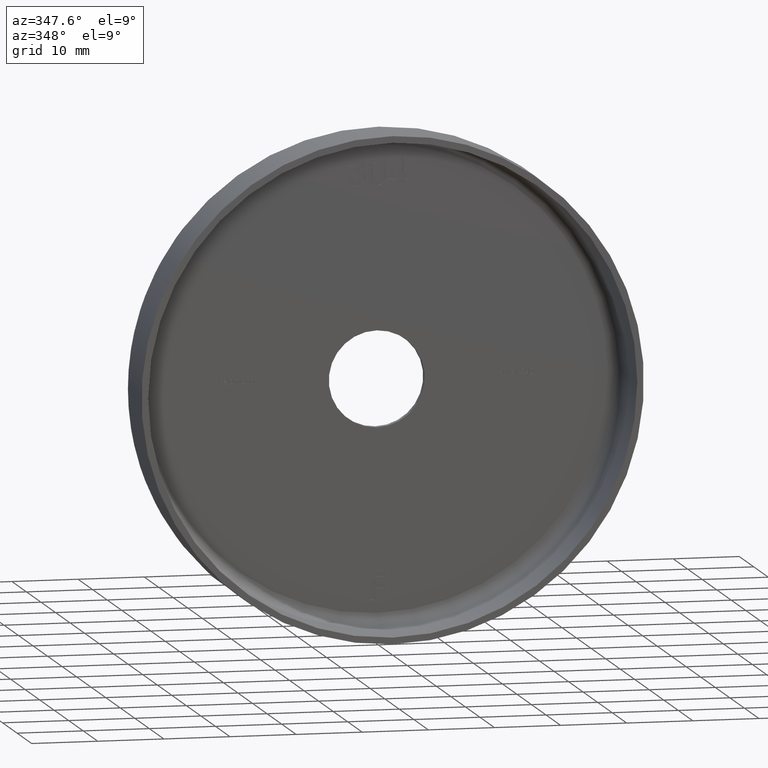
[diagram: clean part render]
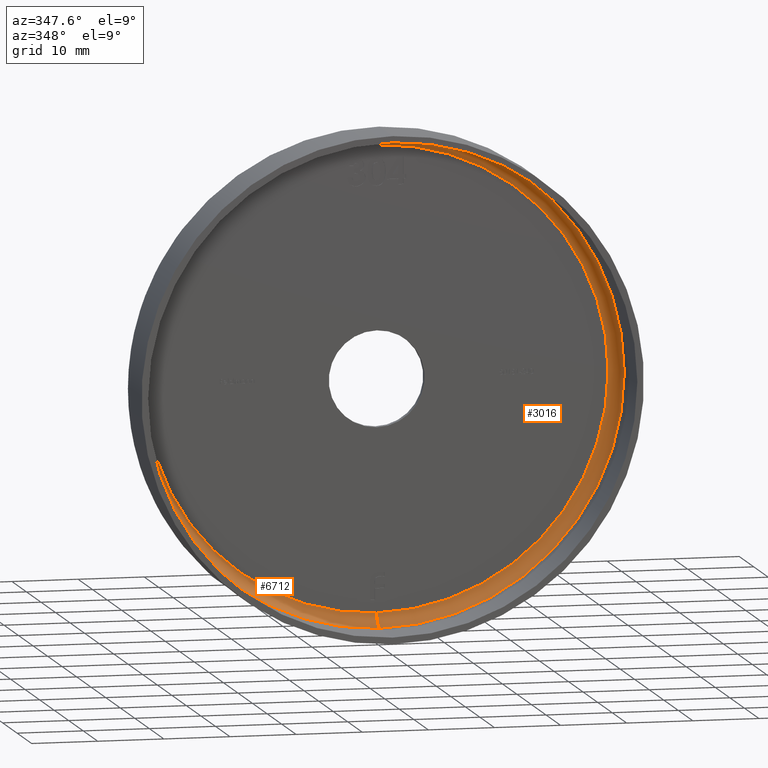
[diagram: same view with one multi-face feature highlighted, each face labeled with its STEP entity id]
A machine part, auxiliary view. The highlighted faces form ONE feature: a constant-radius fillet chain: 2 tangent blend faces with common blend radius 2 mm. The faces share edges in the B-rep.
Their STEP definitions:
[1] entity #6712 (Torus):
#182 = DIRECTION ( 'NONE',  ( 0.000000000000000000, 0.000000000000000000, 1.000000000000000000 ) ) ;
#188 = DIRECTION ( 'NONE',  ( -0.000000000000000000, -1.000000000000000000, -0.000000000000000000 ) ) ;
#680 = CARTESIAN_POINT ( 'NONE',  ( 4.531193156845207581E-15, 9.000000000000001776, 37.00000000000000711 ) ) ;
#1110 = CIRCLE ( 'NONE', #10536, 2.000000000000001776 ) ;
#1143 = CARTESIAN_POINT ( 'NONE',  ( 4.286263797015736496E-15, 9.000000000000001776, 35.00000000000000000 ) ) ;
#1369 = DIRECTION ( 'NONE',  ( 0.000000000000000000, 0.000000000000000000, -1.000000000000000000 ) ) ;
#1545 = CARTESIAN_POINT ( 'NONE',  ( 0.000000000000000000, 9.000000000000001776, -37.00000000000000711 ) ) ;
#2362 = ORIENTED_EDGE ( 'NONE', *, *, #4398, .T. ) ;
#2639 = DIRECTION ( 'NONE',  ( -0.000000000000000000, -1.000000000000000000, -0.000000000000000000 ) ) ;
#3726 = CARTESIAN_POINT ( 'NONE',  ( 0.000000000000000000, 9.000000000000001776, -35.00000000000000000 ) ) ;
#3733 = CARTESIAN_POINT ( 'NONE',  ( 0.000000000000000000, 11.00000000000000178, 0.000000000000000000 ) ) ;
#3779 = VERTEX_POINT ( 'NONE', #7228 ) ;
#3780 = EDGE_CURVE ( 'NONE', #3779, #13466, #1110, .T. ) ;
#4398 = EDGE_CURVE ( 'NONE', #4908, #13466, #14119, .T. ) ;
#4908 = VERTEX_POINT ( 'NONE', #680 ) ;
#4950 = DIRECTION ( 'NONE',  ( -1.000000000000000000, 0.000000000000000000, 0.000000000000000000 ) ) ;
#5173 = EDGE_LOOP ( 'NONE', ( #5254, #11848, #2362, #7287 ) ) ;
#5254 = ORIENTED_EDGE ( 'NONE', *, *, #7177, .F. ) ;
#5627 = AXIS2_PLACEMENT_3D ( 'NONE', #13223, #2639, #10855 ) ;
#5703 = EDGE_CURVE ( 'NONE', #10794, #4908, #10097, .T. ) ;
#5910 = DIRECTION ( 'NONE',  ( -1.224646799147353454E-16, 0.000000000000000000, -1.000000000000000000 ) ) ;
#6606 = FACE_OUTER_BOUND ( 'NONE', #5173, .T. ) ;
#6712 = ADVANCED_FACE ( 'NONE', ( #6606 ), #9344, .F. ) ;
#6901 = CARTESIAN_POINT ( 'NONE',  ( 4.408728476930472433E-15, 11.00000000000000178, 35.00000000000000000 ) ) ;
#7116 = DIRECTION ( 'NONE',  ( -0.000000000000000000, -1.000000000000000000, -0.000000000000000000 ) ) ;
#7177 = EDGE_CURVE ( 'NONE', #10794, #3779, #7304, .T. ) ;
#7228 = CARTESIAN_POINT ( 'NONE',  ( 0.000000000000000000, 11.00000000000000178, -35.00000000000000000 ) ) ;
#7287 = ORIENTED_EDGE ( 'NONE', *, *, #3780, .F. ) ;
#7304 = CIRCLE ( 'NONE', #14273, 35.00000000000000000 ) ;
#9284 = DIRECTION ( 'NONE',  ( 1.000000000000000000, 0.000000000000000000, -1.224646799147353207E-16 ) ) ;
#9344 = TOROIDAL_SURFACE ( 'NONE', #5627, 35.00000000000000000, 2.000000000000000000 ) ;
#9582 = CARTESIAN_POINT ( 'NONE',  ( 0.000000000000000000, 9.000000000000001776, 0.000000000000000000 ) ) ;
#9869 = AXIS2_PLACEMENT_3D ( 'NONE', #1143, #9284, #5910 ) ;
#10097 = CIRCLE ( 'NONE', #9869, 2.000000000000001776 ) ;
#10536 = AXIS2_PLACEMENT_3D ( 'NONE', #3726, #4950, #182 ) ;
#10794 = VERTEX_POINT ( 'NONE', #6901 ) ;
#10855 = DIRECTION ( 'NONE',  ( 0.000000000000000000, 0.000000000000000000, -1.000000000000000000 ) ) ;
#11848 = ORIENTED_EDGE ( 'NONE', *, *, #5703, .T. ) ;
#13223 = CARTESIAN_POINT ( 'NONE',  ( 0.000000000000000000, 9.000000000000001776, 0.000000000000000000 ) ) ;
#13466 = VERTEX_POINT ( 'NONE', #1545 ) ;
#14119 = CIRCLE ( 'NONE', #14888, 37.00000000000000711 ) ;
#14273 = AXIS2_PLACEMENT_3D ( 'NONE', #3733, #188, #1369 ) ;
#14338 = DIRECTION ( 'NONE',  ( 0.000000000000000000, 0.000000000000000000, -1.000000000000000000 ) ) ;
#14888 = AXIS2_PLACEMENT_3D ( 'NONE', #9582, #7116, #14338 ) ;
[2] entity #3016 (Torus):
#182 = DIRECTION ( 'NONE',  ( 0.000000000000000000, 0.000000000000000000, 1.000000000000000000 ) ) ;
#510 = ORIENTED_EDGE ( 'NONE', *, *, #7046, .T. ) ;
#680 = CARTESIAN_POINT ( 'NONE',  ( 4.531193156845207581E-15, 9.000000000000001776, 37.00000000000000711 ) ) ;
#936 = TOROIDAL_SURFACE ( 'NONE', #2878, 35.00000000000000000, 2.000000000000000000 ) ;
#1110 = CIRCLE ( 'NONE', #10536, 2.000000000000001776 ) ;
#1143 = CARTESIAN_POINT ( 'NONE',  ( 4.286263797015736496E-15, 9.000000000000001776, 35.00000000000000000 ) ) ;
#1545 = CARTESIAN_POINT ( 'NONE',  ( 0.000000000000000000, 9.000000000000001776, -37.00000000000000711 ) ) ;
#2037 = DIRECTION ( 'NONE',  ( 0.000000000000000000, 0.000000000000000000, -1.000000000000000000 ) ) ;
#2341 = ORIENTED_EDGE ( 'NONE', *, *, #5703, .F. ) ;
#2878 = AXIS2_PLACEMENT_3D ( 'NONE', #14476, #8811, #14528 ) ;
#3016 = ADVANCED_FACE ( 'NONE', ( #4058 ), #936, .F. ) ;
#3726 = CARTESIAN_POINT ( 'NONE',  ( 0.000000000000000000, 9.000000000000001776, -35.00000000000000000 ) ) ;
#3779 = VERTEX_POINT ( 'NONE', #7228 ) ;
#3780 = EDGE_CURVE ( 'NONE', #3779, #13466, #1110, .T. ) ;
#4058 = FACE_OUTER_BOUND ( 'NONE', #10306, .T. ) ;
#4397 = CIRCLE ( 'NONE', #12538, 35.00000000000000000 ) ;
#4515 = DIRECTION ( 'NONE',  ( 0.000000000000000000, 0.000000000000000000, -1.000000000000000000 ) ) ;
#4908 = VERTEX_POINT ( 'NONE', #680 ) ;
#4950 = DIRECTION ( 'NONE',  ( -1.000000000000000000, 0.000000000000000000, 0.000000000000000000 ) ) ;
#5676 = EDGE_CURVE ( 'NONE', #3779, #10794, #4397, .T. ) ;
#5703 = EDGE_CURVE ( 'NONE', #10794, #4908, #10097, .T. ) ;
#5749 = CARTESIAN_POINT ( 'NONE',  ( 0.000000000000000000, 9.000000000000001776, 0.000000000000000000 ) ) ;
#5910 = DIRECTION ( 'NONE',  ( -1.224646799147353454E-16, 0.000000000000000000, -1.000000000000000000 ) ) ;
#6901 = CARTESIAN_POINT ( 'NONE',  ( 4.408728476930472433E-15, 11.00000000000000178, 35.00000000000000000 ) ) ;
#7046 = EDGE_CURVE ( 'NONE', #13466, #4908, #15057, .T. ) ;
#7228 = CARTESIAN_POINT ( 'NONE',  ( 0.000000000000000000, 11.00000000000000178, -35.00000000000000000 ) ) ;
#8054 = CARTESIAN_POINT ( 'NONE',  ( 0.000000000000000000, 11.00000000000000178, 0.000000000000000000 ) ) ;
#8811 = DIRECTION ( 'NONE',  ( -0.000000000000000000, -1.000000000000000000, -0.000000000000000000 ) ) ;
#9284 = DIRECTION ( 'NONE',  ( 1.000000000000000000, 0.000000000000000000, -1.224646799147353207E-16 ) ) ;
#9869 = AXIS2_PLACEMENT_3D ( 'NONE', #1143, #9284, #5910 ) ;
#10097 = CIRCLE ( 'NONE', #9869, 2.000000000000001776 ) ;
#10306 = EDGE_LOOP ( 'NONE', ( #2341, #12351, #12817, #510 ) ) ;
#10536 = AXIS2_PLACEMENT_3D ( 'NONE', #3726, #4950, #182 ) ;
#10794 = VERTEX_POINT ( 'NONE', #6901 ) ;
#11722 = DIRECTION ( 'NONE',  ( -0.000000000000000000, -1.000000000000000000, -0.000000000000000000 ) ) ;
#12351 = ORIENTED_EDGE ( 'NONE', *, *, #5676, .F. ) ;
#12538 = AXIS2_PLACEMENT_3D ( 'NONE', #8054, #14877, #2037 ) ;
#12817 = ORIENTED_EDGE ( 'NONE', *, *, #3780, .T. ) ;
#13466 = VERTEX_POINT ( 'NONE', #1545 ) ;
#13992 = AXIS2_PLACEMENT_3D ( 'NONE', #5749, #11722, #4515 ) ;
#14476 = CARTESIAN_POINT ( 'NONE',  ( 0.000000000000000000, 9.000000000000001776, 0.000000000000000000 ) ) ;
#14528 = DIRECTION ( 'NONE',  ( 0.000000000000000000, 0.000000000000000000, -1.000000000000000000 ) ) ;
#14877 = DIRECTION ( 'NONE',  ( -0.000000000000000000, -1.000000000000000000, -0.000000000000000000 ) ) ;
#15057 = CIRCLE ( 'NONE', #13992, 37.00000000000000711 ) ;